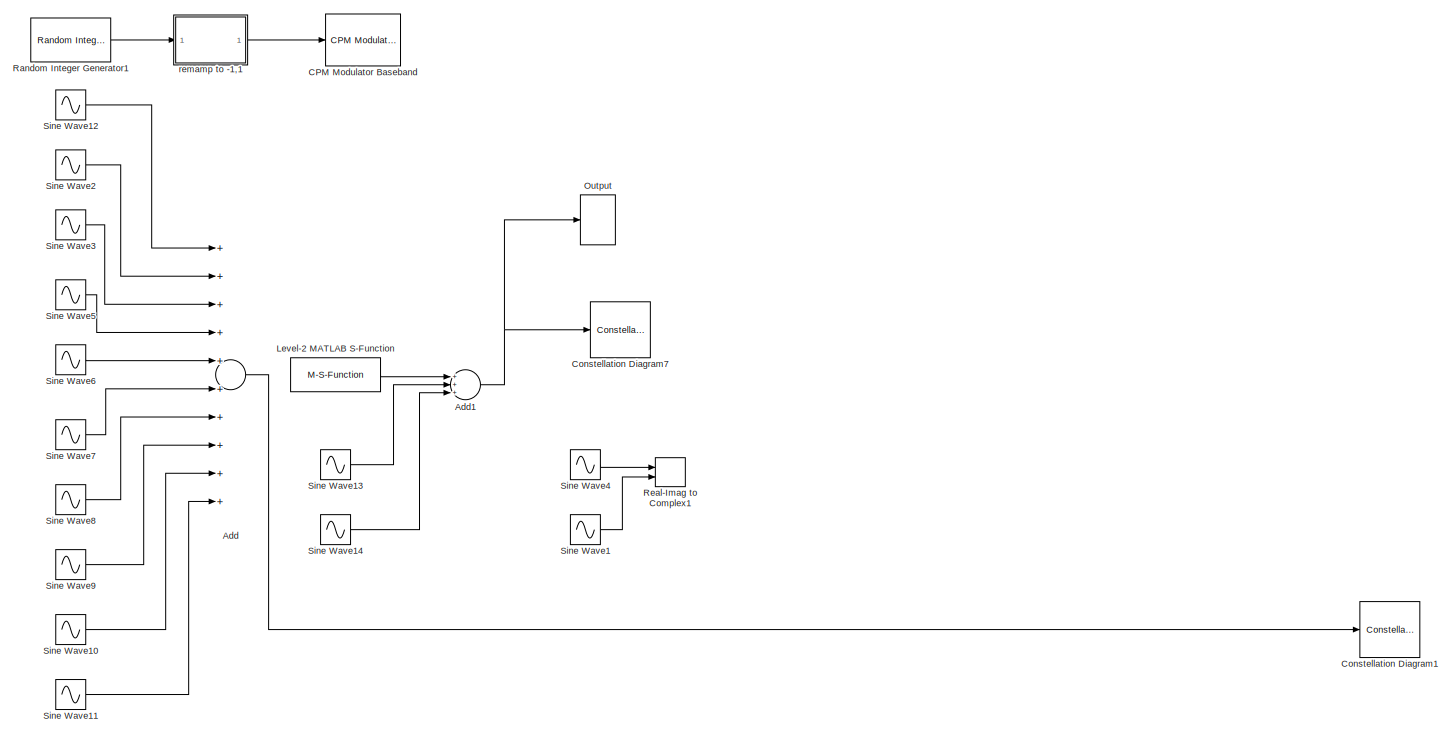
[diagram: root canvas - part 1/4, top left region]
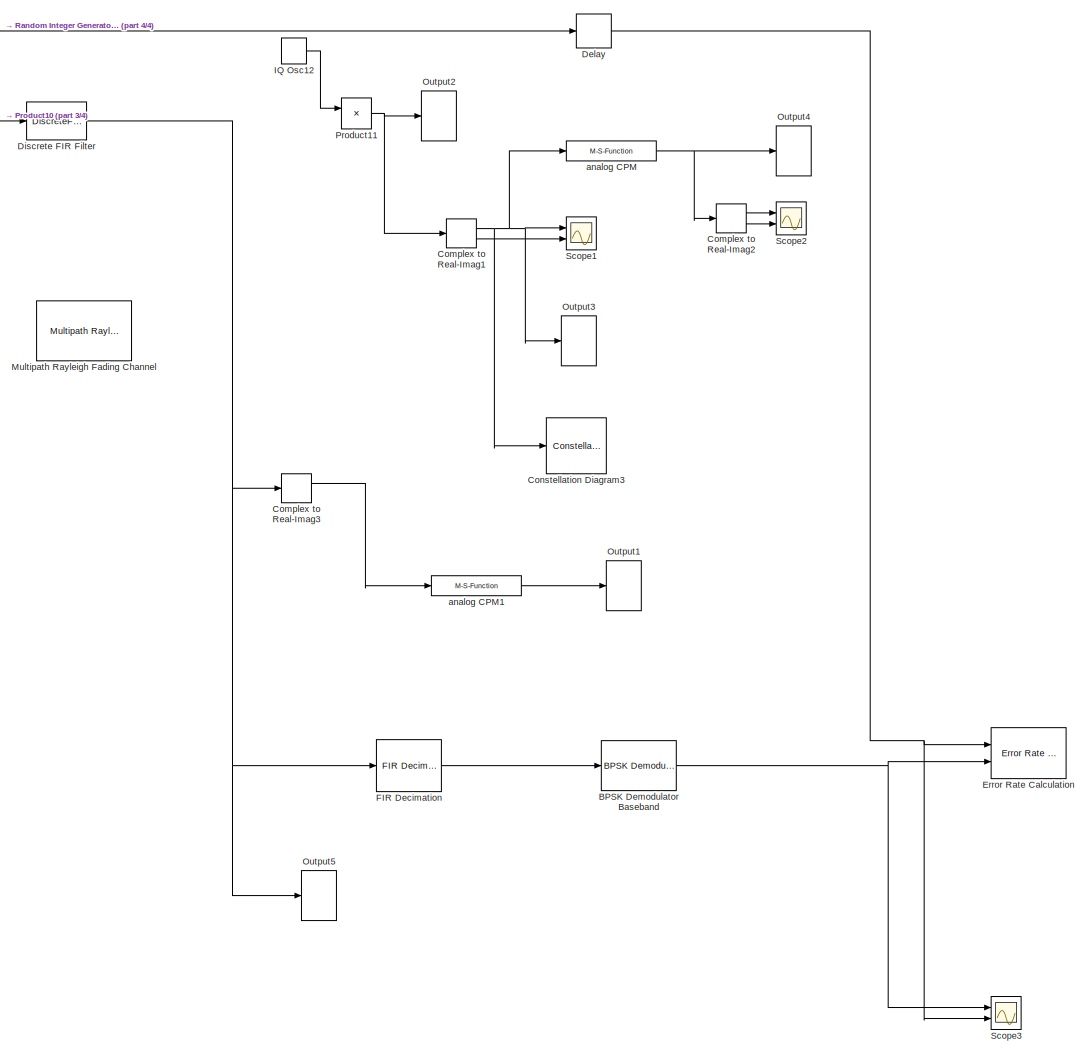
[diagram: root canvas - part 2/4, bottom right region]
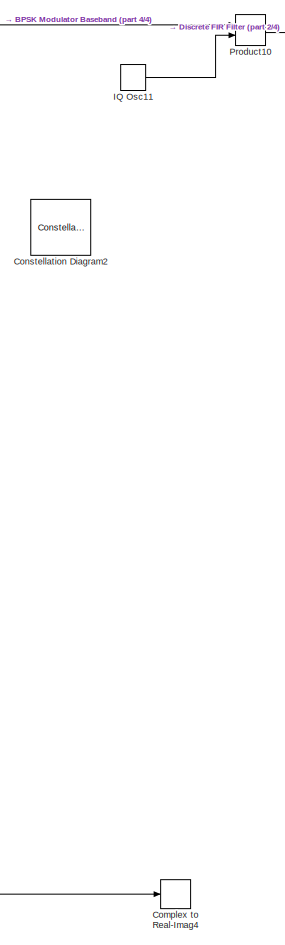
[diagram: root canvas - part 3/4, bottom center region]
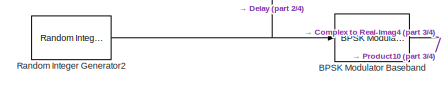
[diagram: root canvas - part 4/4, middle left region]
MODEL slx_1d4e7e3986cb
KIND model
BLOCK [Sum] Add
  InputSameDT = off
  Inputs = ++++++++++
  OutDataTypeStr = Inherit: Inherit via internal rule
  Ports = [10, 1]
  SaturateOnIntegerOverflow = off
BLOCK [Sum] Add1
  Commented = on
  InputSameDT = off
  Inputs = +++
  OutDataTypeStr = Inherit: Inherit via internal rule
  Ports = [3, 1]
  SaturateOnIntegerOverflow = off
BLOCK [Reference] BPSK Demodulator Baseband  REF=commdigbbndpm3/BPSK
Demodulator
Baseband
  DecType = Hard decision
  Ph = 0
  Ports = [1, 1]
  SourceBlock = commdigbbndpm3/BPSK\nDemodulator\nBaseband
  SourceType = BPSK Demodulator Baseband
  VarSource = Dialog
  Variance = 1
  derotateFactorDTMode = Same word length as input
  derotateFactorWordLen = 16
  outDtype = Inherit via internal rule
BLOCK [Reference] BPSK Modulator Baseband  REF=commdigbbndpm3/BPSK
Modulator
Baseband
  Ph = 0
  Ports = [1, 1]
  SourceBlock = commdigbbndpm3/BPSK\nModulator\nBaseband
  SourceType = BPSK Modulator Baseband
  outDtype = double
  outFracLen = 15
  outFracLenMode = Best precision
  outUDDataType = sfix(16)
  outWordLen = 16
BLOCK [Reference] CPM Modulator Baseband  REF=commdigbbndcpm2/CPM
Modulator
Baseband
  BT = 0.3
  Commented = on
  Mnum = 4
  Ports = [1, 1]
  RateOptions = Enforce single-rate processing
  SourceBlock = commdigbbndcpm2/CPM\nModulator\nBaseband
  SourceType = CPM Modulator Baseband
  UserDataPersistent = on
  inputType = Integer
  mainLobePulseLength = 1
  mappingType = Binary
  modIdx = 0.5
  outDataType = double
  phaseOffset = 0
  preHistory = 1
  pulseLength = 1
  pulseShape = Rectangular
  rollOff = 0.2
  samplesPerSymbol = 8
BLOCK [ComplexToRealImag] Complex to Real-Imag1
  Commented = on
  Ports = [1, 2]
BLOCK [ComplexToRealImag] Complex to Real-Imag2
  Commented = on
  Ports = [1, 2]
BLOCK [ComplexToRealImag] Complex to Real-Imag3
  Ports = [1, 2]
BLOCK [ComplexToRealImag] Complex to Real-Imag4
  Ports = [1, 2]
BLOCK [ConstellationDiagram] Constellation Diagram1
  Commented = on
  Ports = [1]
  ScopeSpecificationString = comm.scopes.ConstellationDiagramBlockCfg('CurrentConfiguration', extmgr.ConfigurationSet(extmgr.Configuration('Core','General UI',true),extmgr.Configuration('Core','Source UI',true),extmgr.Configuration('Sources','WiredSimulink',true),extmgr.Configuration('Sources','Simulink',false),extmgr.Configuration('Sources','File',false),extmgr.Configuration('Sources','Workspace',false),extmgr.Configuration(...<+1764ch>  <repeated x4 — deduplicated; at blocks: Constellation Diagram1, Constellation Diagram2, Constellation Diagram3, Constellation Diagram7>
BLOCK [ConstellationDiagram] Constellation Diagram2
  Commented = on
  Ports = [1]
BLOCK [ConstellationDiagram] Constellation Diagram3
  Commented = on
  Ports = [1]
BLOCK [ConstellationDiagram] Constellation Diagram7
  Commented = on
  Ports = [1]
BLOCK [Delay] Delay
  DelayLength = 38
  InitialCondition = 0
  InputPortMap = u0
  Ports = [1, 1]
BLOCK [DiscreteFir] Discrete FIR Filter
  Coefficients = 0.35*sinc(0.35*(-100:100))
  Ports = [1, 1]
BLOCK [Reference] Error Rate Calculation  REF=commsink2/Error Rate
Calculation
  N = 0
  PMode = Workspace
  Ports = [2]
  RsMode2 = off
  SourceBlock = commsink2/Error Rate\nCalculation
  SourceType = Error Rate Calculation
  WsName = ErrorVec
  cp_mode = Entire frame
  maxBits = 1e6
  numErr = 100
  st_delay = 0
  stop = off
  subframe = []
BLOCK [Reference] FIR Decimation  REF=dspmlti4/FIR
Decimation
  D = 4
  FilterObject = Hm_firdecim
  FilterSource = Specify via dialog
  InputProcessing = Elements as channels (sample based)
  LockScale = off
  Ports = [1, 1]
  SourceBlock = dspmlti4/FIR\nDecimation
  SourceType = FIR Decimation
  UserDataPersistent = on
  accumDataTypeStr = Inherit: Inherit via internal rule
  accumFracLength = 30
  accumLastDataTypeStr = Inherit: Inherit via internal rule
  accumMode = Inherit via internal rule
  accumWordLength = 32
  additionalParams = off
  allowOverrides = off
  filtStruct = Direct form
  firstCoeffDataTypeStr = Inherit: Same word length as input
  firstCoeffFracLength = 15
  firstCoeffLastDataTypeStr = Inherit: Same word length as input
  firstCoeffMax = []
  firstCoeffMin = []
  firstCoeffMode = Same word length as input
  firstCoeffWordLength = 16
  framing = Allow multirate processing
  h = fir1(100,0.35)
  inputOffset = 0
  outputBufInitCond = 0
  outputDataTypeStr = Inherit: Same as accumulator
  outputFracLength = 15
  outputLastDataTypeStr = Inherit: Same as accumulator
  outputMax = []
  outputMin = []
  outputMode = Same as accumulator
  outputWordLength = 16
  overflowMode = off
  prodOutputDataTypeStr = Inherit: Inherit via internal rule
  prodOutputFracLength = 30
  prodOutputLastDataTypeStr = Inherit: Inherit via internal rule
  prodOutputMode = Inherit via internal rule
  prodOutputWordLength = 32
  roundingMode = Floor
BLOCK [M-S-Function] IQ Osc11
  FunctionName = complex_source
  Parameters = Freq, SampleTime
  Ports = [0, 1]
BLOCK [M-S-Function] IQ Osc12
  Commented = on
  FunctionName = complex_source
  Parameters = Freq, SampleTime
  Ports = [0, 1]
BLOCK [M-S-Function] Level-2 MATLAB S-Function
  Commented = on
  FunctionName = mr_cpm_mod1
  Ports = [1, 1]
BLOCK [Reference] Multipath Rayleigh Fading Channel  REF=commchan3/Multipath Rayleigh
Fading Channel
  Commented = on
  Ports = [1, 1]
  SourceBlock = commchan3/Multipath Rayleigh\nFading Channel
  SourceType = Multipath Rayleigh Fading Channel
  avgPathGaindB = [0 -3]
  centerFreqGaussian1 = 0.0
  centerFreqGaussian2 = 0.0
  coeffBell = 9
  coeffRounded = [1 -1.72 0.785]
  dopplerSpectrum = doppler.jakes
  enableProbe = 0
  freqMinMaxAJakes = [0 1]
  freqMinMaxRJakes = [0 1]
  gainGaussian1 = 0.5
  gainGaussian2 = 0.5
  maxDopplerShift = 40
  normalizePathGains = on
  openVisAtStart = off
  outDelay = off
  outPathGains = off
  pathDelays = [0 2e-6]
  seed = 73
  sigmaGaussian = 1/sqrt(2)
  sigmaGaussian1 = 1/sqrt(2)
  sigmaGaussian2 = 1/sqrt(2)
  spectrumType = Jakes
BLOCK [SpectrumAnalyzer] Output
  Commented = on
  Ports = [1]
  ScopeSpecificationString = spbscopes.SpectrumAnalyzerBlockCfg('CurrentConfiguration', extmgr.ConfigurationSet(extmgr.Configuration('Core','General UI',true,'DisplayFullSourceName',true,'FigureColor',[0.941176470588235 0.941176470588235 0.941176470588235]),extmgr.Configuration('Core','Source UI',true),extmgr.Configuration('Sources','WiredSimulink',true),extmgr.Configuration('Sources','Simulink',false),extmgr.Configuration('S...<+7397ch>
BLOCK [SpectrumAnalyzer] Output1
  Ports = [1]
  ScopeSpecificationString = spbscopes.SpectrumAnalyzerBlockCfg('CurrentConfiguration', extmgr.ConfigurationSet(extmgr.Configuration('Core','General UI',true,'DisplayFullSourceName',true,'FigureColor',[0.941176470588235 0.941176470588235 0.941176470588235]),extmgr.Configuration('Core','Source UI',true),extmgr.Configuration('Sources','WiredSimulink',true),extmgr.Configuration('Sources','Simulink',false),extmgr.Configuration('S...<+7436ch>
BLOCK [SpectrumAnalyzer] Output2
  Commented = on
  Ports = [1]
  ScopeSpecificationString = spbscopes.SpectrumAnalyzerBlockCfg('CurrentConfiguration', extmgr.ConfigurationSet(extmgr.Configuration('Core','General UI',true,'DisplayFullSourceName',true,'FigureColor',[0.941176470588235 0.941176470588235 0.941176470588235]),extmgr.Configuration('Core','Source UI',true),extmgr.Configuration('Sources','WiredSimulink',true),extmgr.Configuration('Sources','Simulink',false),extmgr.Configuration('S...<+7409ch>
BLOCK [SpectrumAnalyzer] Output3
  Commented = on
  Ports = [1]
  ScopeSpecificationString = spbscopes.SpectrumAnalyzerBlockCfg('CurrentConfiguration', extmgr.ConfigurationSet(extmgr.Configuration('Core','General UI',true,'DisplayFullSourceName',true,'FigureColor',[0.941176470588235 0.941176470588235 0.941176470588235]),extmgr.Configuration('Core','Source UI',true),extmgr.Configuration('Sources','WiredSimulink',true),extmgr.Configuration('Sources','Simulink',false),extmgr.Configuration('S...<+7410ch>
BLOCK [SpectrumAnalyzer] Output4
  Commented = on
  Ports = [1]
  ScopeSpecificationString = spbscopes.SpectrumAnalyzerBlockCfg('CurrentConfiguration', extmgr.ConfigurationSet(extmgr.Configuration('Core','General UI',true,'DisplayFullSourceName',true,'FigureColor',[0.941176470588235 0.941176470588235 0.941176470588235]),extmgr.Configuration('Core','Source UI',true),extmgr.Configuration('Sources','WiredSimulink',true),extmgr.Configuration('Sources','Simulink',false),extmgr.Configuration('S...<+7379ch>
BLOCK [SpectrumAnalyzer] Output5
  Ports = [1]
  ScopeSpecificationString = spbscopes.SpectrumAnalyzerBlockCfg('CurrentConfiguration', extmgr.ConfigurationSet(extmgr.Configuration('Core','General UI',true,'DisplayFullSourceName',true,'FigureColor',[0.941176470588235 0.941176470588235 0.941176470588235]),extmgr.Configuration('Core','Source UI',true),extmgr.Configuration('Sources','WiredSimulink',true),extmgr.Configuration('Sources','Simulink',false),extmgr.Configuration('S...<+7436ch>
BLOCK [Product] Product10
  InputSameDT = off
  OutDataTypeStr = Inherit: Inherit via internal rule
  Ports = [2, 1]
  RndMeth = Floor
  SaturateOnIntegerOverflow = off
BLOCK [Product] Product11
  Commented = on
  InputSameDT = off
  OutDataTypeStr = Inherit: Inherit via internal rule
  Ports = [2, 1]
  RndMeth = Floor
  SaturateOnIntegerOverflow = off
BLOCK [Reference] Random Integer Generator1  REF=commrandsrc2/Random Integer
Generator
  Commented = on
  Ports = [0, 1]
  SourceBlock = commrandsrc2/Random Integer\nGenerator
  SourceType = Random Integer Generator
  Ts = 1/(10000)
  frameBased = off
  mul = 2
  orient = off
  outDataType = double
  sampPerFrame = 1024
  seed = 42
BLOCK [Reference] Random Integer Generator2  REF=commrandsrc2/Random Integer
Generator
  Ports = [0, 1]
  SourceBlock = commrandsrc2/Random Integer\nGenerator
  SourceType = Random Integer Generator
  Ts = 1/(10000)
  frameBased = off
  mul = 2
  orient = off
  outDataType = double
  sampPerFrame = 1
  seed = 42
BLOCK [RealImagToComplex] Real-Imag to Complex1
  Commented = on
  Ports = [2, 1]
BLOCK [Scope] Scope1
  Commented = on
  Floating = off
  NumInputPorts = 2
  Ports = [2]
  SaveName = ScopeData1
  ShowLegends = off
  YMax = 5~5
  YMin = -5~-5
  ZoomMode = xonly
BLOCK [Scope] Scope2
  Commented = on
  Floating = off
  NumInputPorts = 2
  Ports = [2]
  SaveName = ScopeData2
  ShowLegends = off
  YMax = 5~5
  YMin = -5~-5
  ZoomMode = xonly
BLOCK [Scope] Scope3
  Commented = on
  Floating = off
  MaxDataPoints = 20000
  NumInputPorts = 2
  Ports = [2]
  ShowLegends = off
  YMax = 5~5
  YMin = -5~-5
  ZoomMode = xonly
BLOCK [Sin] Sine Wave1
  Commented = on
  Frequency = 12.801*2*pi*1000
  Phase = -pi/2
  Ports = [0, 1]
  SampleTime = 1/128000
BLOCK [Sin] Sine Wave10
  Amplitude = 0.1
  Frequency = 98*2*pi
  Ports = [0, 1]
  SampleTime = 1/128000
BLOCK [Sin] Sine Wave11
  Amplitude = 0.1
  Frequency = 99*2*pi
  Ports = [0, 1]
  SampleTime = 1/128000
BLOCK [Sin] Sine Wave12
  Amplitude = 0.1
  Frequency = 100*2*pi
  Ports = [0, 1]
  SampleTime = 1/128000
BLOCK [Sin] Sine Wave13
  Commented = on
  Frequency = 10*2*pi
  Ports = [0, 1]
  SampleTime = 1/128000
BLOCK [Sin] Sine Wave14
  Commented = on
  Frequency = 20*2*pi
  Ports = [0, 1]
  SampleTime = 1/128000
BLOCK [Sin] Sine Wave2
  Amplitude = 0.1
  Frequency = 91*2*pi
  Ports = [0, 1]
  SampleTime = 1/128000
BLOCK [Sin] Sine Wave3
  Amplitude = 0.1
  Frequency = 92*2*pi
  Ports = [0, 1]
  SampleTime = 1/128000
BLOCK [Sin] Sine Wave4
  Commented = on
  Frequency = 12.801*2*pi*1000
  Ports = [0, 1]
  SampleTime = 1/128000
BLOCK [Sin] Sine Wave5
  Amplitude = 0.1
  Frequency = 93*2*pi
  Ports = [0, 1]
  SampleTime = 1/128000
BLOCK [Sin] Sine Wave6
  Amplitude = 0.1
  Frequency = 94*2*pi
  Ports = [0, 1]
  SampleTime = 1/128000
BLOCK [Sin] Sine Wave7
  Amplitude = 0.1
  Frequency = 95*2*pi
  Ports = [0, 1]
  SampleTime = 1/128000
BLOCK [Sin] Sine Wave8
  Amplitude = 0.1
  Frequency = 96*2*pi
  Ports = [0, 1]
  SampleTime = 1/128000
BLOCK [Sin] Sine Wave9
  Amplitude = 0.1
  Frequency = 97*2*pi
  Ports = [0, 1]
  SampleTime = 1/128000
BLOCK [M-S-Function] analog CPM
  Commented = on
  FunctionName = mr_cpm_mod1
  Ports = [1, 1]
BLOCK [M-S-Function] analog CPM1
  FunctionName = mr_cpm_mod1
  Ports = [1, 1]
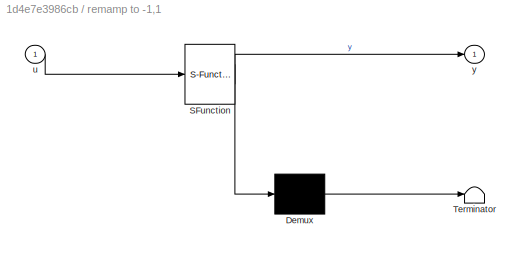
BLOCK [SubSystem] remamp to -1,1
  Commented = on
  ErrorFcn = Stateflow.Translate.translate
  PermitHierarchicalResolution = ExplicitOnly
  Ports = [1, 1]
  RequestExecContextInheritance = off
  SFBlockType = MATLAB Function
  TreatAsAtomicUnit = on
BLOCK [Demux] remamp to -1,1/ Demux 
  Outputs = 1
  Ports = [1, 1]
BLOCK [S-Function] remamp to -1,1/ SFunction 
  EnableBusSupport = on
  FunctionName = sf_sfun
  PortCounts = [1 2]
  Ports = [1, 2]
  Tag = Stateflow S-Function mr_cpm_test2 2
BLOCK [Terminator] remamp to -1,1/ Terminator 
BLOCK [Inport] remamp to -1,1/u
  IconDisplay = Port number
BLOCK [Outport] remamp to -1,1/y
  IconDisplay = Port number
NET Add1:1 -> Constellation Diagram7:1, Output:1
LINE Add:1 -> Constellation Diagram1:1
NET BPSK Demodulator Baseband:1 -> Error Rate Calculation:2, Scope3:1
NET BPSK Modulator Baseband:1 -> Complex to Real-Imag4:1, Product10:1
NET Complex to Real-Imag1:1 -> Constellation Diagram3:1, Output3:1, Scope1:1, analog CPM:1
LINE Complex to Real-Imag1:2 -> Scope1:2
LINE Complex to Real-Imag2:1 -> Scope2:1
LINE Complex to Real-Imag2:2 -> Scope2:2
LINE Complex to Real-Imag3:1 -> analog CPM1:1
NET Delay:1 -> Error Rate Calculation:1, Scope3:2
NET Discrete FIR Filter:1 -> Complex to Real-Imag3:1, FIR Decimation:1, Output5:1
LINE FIR Decimation:1 -> BPSK Demodulator Baseband:1
LINE IQ Osc11:1 -> Product10:2
LINE IQ Osc12:1 -> Product11:1
LINE Level-2 MATLAB S-Function:1 -> Add1:1
LINE Product10:1 -> Discrete FIR Filter:1
NET Product11:1 -> Complex to Real-Imag1:1, Output2:1
LINE Random Integer Generator1:1 -> remamp to -1,1:1
NET Random Integer Generator2:1 -> BPSK Modulator Baseband:1, Delay:1
LINE Sine Wave10:1 -> Add:9
LINE Sine Wave11:1 -> Add:10
LINE Sine Wave12:1 -> Add:1
LINE Sine Wave13:1 -> Add1:2
LINE Sine Wave14:1 -> Add1:3
LINE Sine Wave1:1 -> Real-Imag to Complex1:2
LINE Sine Wave2:1 -> Add:2
LINE Sine Wave3:1 -> Add:3
LINE Sine Wave4:1 -> Real-Imag to Complex1:1
LINE Sine Wave5:1 -> Add:4
LINE Sine Wave6:1 -> Add:5
LINE Sine Wave7:1 -> Add:6
LINE Sine Wave8:1 -> Add:7
LINE Sine Wave9:1 -> Add:8
LINE analog CPM1:1 -> Output1:1
NET analog CPM:1 -> Complex to Real-Imag2:1, Output4:1
LINE remamp to -1,1:1 -> CPM Modulator Baseband:1
note: NET lines group one-source signal fan-out (src -> all destinations, sorted); 1:1 wires keep LINE
CHART remamp to -1,1 states=1 transitions=1
  STATE_LABEL 'eML_blk_kernel()'
  STATE_LABEL 'SCRIPT:\nfunction y = fcn(u)\n%#codegen\n\ny = (u*2)-1;'
